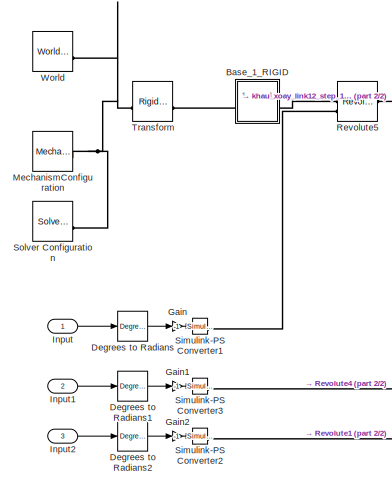
[diagram: root canvas - part 1/2, left side, full height]
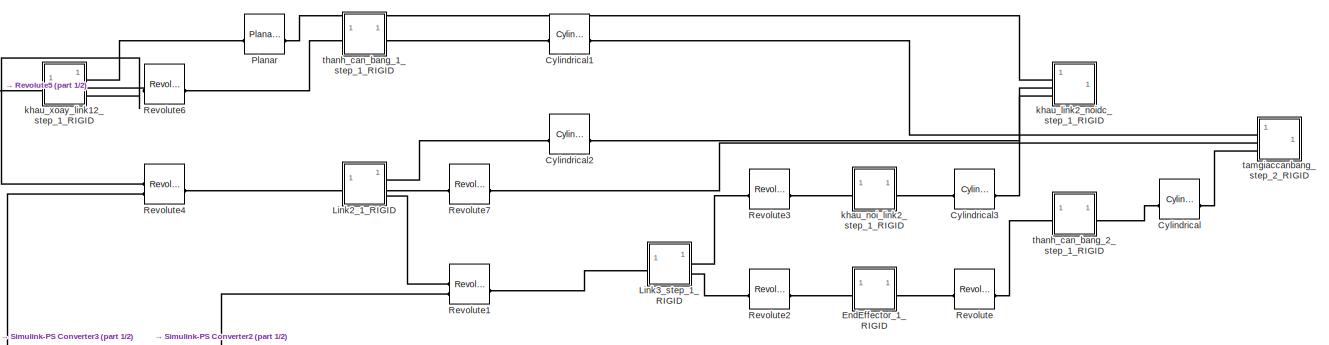
[diagram: root canvas - part 2/2, full width, middle band]
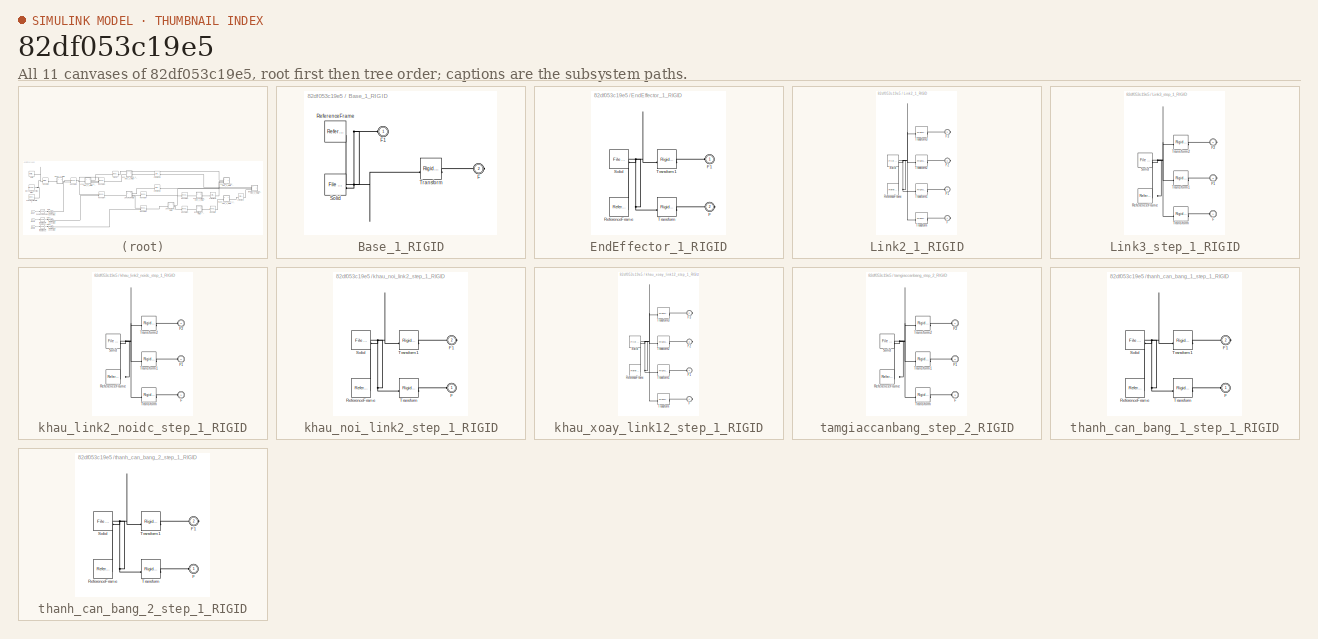
[diagram: thumbnail index - all 11 canvases of the model, root first then tree order]
MODEL slx_82df053c19e5
KIND model
CONFIG AbsTol = auto
CONFIG EnableMultiTasking = off
CONFIG FixedStep = auto
CONFIG MaxStep = auto
CONFIG MinStep = auto
CONFIG RelTol = 1e-3
CONFIG SampleTimeConstraint = Unconstrained
CONFIG SolverName = VariableStepAuto
CONFIG StartTime = 0.0
CONFIG StopTime = 10.0
WORKSPACE source: external: MATLAB File  (data not in archive)
BLOCK [SubSystem] Base_1_RIGID
BLOCK [PMIOPort] Base_1_RIGID/F
  Port = 2
  Side = Right
BLOCK [PMIOPort] Base_1_RIGID/F1
  Side = Left
BLOCK [Reference] Base_1_RIGID/ReferenceFrame  REF=sm_lib/Frames and
Transforms/Reference
Frame
  SourceBlock = sm_lib/Frames and\nTransforms/Reference\nFrame
  SourceType = Reference\nFrame
BLOCK [Reference] Base_1_RIGID/Solid  REF=sm_lib/Body Elements/File Solid
  SourceBlock = sm_lib/Body Elements/File Solid
  SourceType = File Solid
BLOCK [Reference] Base_1_RIGID/Transform  REF=sm_lib/Frames and
Transforms/Rigid
Transform
  SourceBlock = sm_lib/Frames and\nTransforms/Rigid\nTransform
  SourceType = Rigid\nTransform
BLOCK [Reference] Cylindrical  REF=sm_lib/Joints/Cylindrical
Joint
  SourceBlock = sm_lib/Joints/Cylindrical\nJoint
  SourceType = Cylindrical\nJoint
BLOCK [Reference] Cylindrical1  REF=sm_lib/Joints/Cylindrical
Joint
  SourceBlock = sm_lib/Joints/Cylindrical\nJoint
  SourceType = Cylindrical\nJoint
BLOCK [Reference] Cylindrical2  REF=sm_lib/Joints/Cylindrical
Joint
  SourceBlock = sm_lib/Joints/Cylindrical\nJoint
  SourceType = Cylindrical\nJoint
BLOCK [Reference] Cylindrical3  REF=sm_lib/Joints/Cylindrical
Joint
  SourceBlock = sm_lib/Joints/Cylindrical\nJoint
  SourceType = Cylindrical\nJoint
BLOCK [Reference] Degrees to Radians  REF=simulink_extras/Transformations/Degrees to
Radians
  SourceBlock = simulink_extras/Transformations/Degrees to\nRadians
  SourceType = DegreesToRadians
BLOCK [Reference] Degrees to Radians1  REF=simulink_extras/Transformations/Degrees to
Radians
  SourceBlock = simulink_extras/Transformations/Degrees to\nRadians
  SourceType = DegreesToRadians
BLOCK [Reference] Degrees to Radians2  REF=simulink_extras/Transformations/Degrees to
Radians
  SourceBlock = simulink_extras/Transformations/Degrees to\nRadians
  SourceType = DegreesToRadians
BLOCK [SubSystem] EndEffector_1_RIGID
BLOCK [PMIOPort] EndEffector_1_RIGID/F
  Port = 2
  Side = Right
BLOCK [PMIOPort] EndEffector_1_RIGID/F1
  Side = Left
BLOCK [Reference] EndEffector_1_RIGID/ReferenceFrame  REF=sm_lib/Frames and
Transforms/Reference
Frame
  SourceBlock = sm_lib/Frames and\nTransforms/Reference\nFrame
  SourceType = Reference\nFrame
BLOCK [Reference] EndEffector_1_RIGID/Solid  REF=sm_lib/Body Elements/File Solid
  SourceBlock = sm_lib/Body Elements/File Solid
  SourceType = File Solid
BLOCK [Reference] EndEffector_1_RIGID/Transform  REF=sm_lib/Frames and
Transforms/Rigid
Transform
  SourceBlock = sm_lib/Frames and\nTransforms/Rigid\nTransform
  SourceType = Rigid\nTransform
BLOCK [Reference] EndEffector_1_RIGID/Transform1  REF=sm_lib/Frames and
Transforms/Rigid
Transform
  SourceBlock = sm_lib/Frames and\nTransforms/Rigid\nTransform
  SourceType = Rigid\nTransform
BLOCK [Gain] Gain
  Gain = -1
BLOCK [Gain] Gain1
  Gain = -1
BLOCK [Gain] Gain2
  Gain = -1
BLOCK [Inport] Input
BLOCK [Inport] Input1
  Port = 2
BLOCK [Inport] Input2
  Port = 3
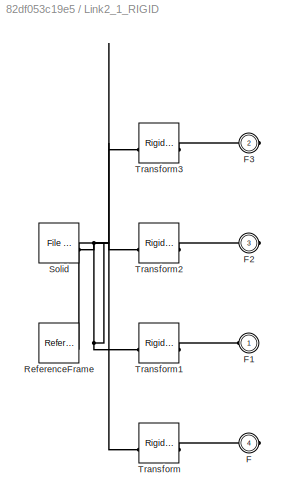
BLOCK [SubSystem] Link2_1_RIGID
BLOCK [PMIOPort] Link2_1_RIGID/F
  Port = 4
  Side = Right
BLOCK [PMIOPort] Link2_1_RIGID/F1
  Side = Left
BLOCK [PMIOPort] Link2_1_RIGID/F2
  Port = 3
  Side = Right
BLOCK [PMIOPort] Link2_1_RIGID/F3
  Port = 2
  Side = Right
BLOCK [Reference] Link2_1_RIGID/ReferenceFrame  REF=sm_lib/Frames and
Transforms/Reference
Frame
  SourceBlock = sm_lib/Frames and\nTransforms/Reference\nFrame
  SourceType = Reference\nFrame
BLOCK [Reference] Link2_1_RIGID/Solid  REF=sm_lib/Body Elements/File Solid
  SourceBlock = sm_lib/Body Elements/File Solid
  SourceType = File Solid
BLOCK [Reference] Link2_1_RIGID/Transform  REF=sm_lib/Frames and
Transforms/Rigid
Transform
  SourceBlock = sm_lib/Frames and\nTransforms/Rigid\nTransform
  SourceType = Rigid\nTransform
BLOCK [Reference] Link2_1_RIGID/Transform1  REF=sm_lib/Frames and
Transforms/Rigid
Transform
  SourceBlock = sm_lib/Frames and\nTransforms/Rigid\nTransform
  SourceType = Rigid\nTransform
BLOCK [Reference] Link2_1_RIGID/Transform2  REF=sm_lib/Frames and
Transforms/Rigid
Transform
  SourceBlock = sm_lib/Frames and\nTransforms/Rigid\nTransform
  SourceType = Rigid\nTransform
BLOCK [Reference] Link2_1_RIGID/Transform3  REF=sm_lib/Frames and
Transforms/Rigid
Transform
  SourceBlock = sm_lib/Frames and\nTransforms/Rigid\nTransform
  SourceType = Rigid\nTransform
BLOCK [SubSystem] Link3_step_1_RIGID
BLOCK [PMIOPort] Link3_step_1_RIGID/F
  Side = Left
BLOCK [PMIOPort] Link3_step_1_RIGID/F1
  Port = 3
  Side = Right
BLOCK [PMIOPort] Link3_step_1_RIGID/F2
  Port = 2
  Side = Right
BLOCK [Reference] Link3_step_1_RIGID/ReferenceFrame  REF=sm_lib/Frames and
Transforms/Reference
Frame
  SourceBlock = sm_lib/Frames and\nTransforms/Reference\nFrame
  SourceType = Reference\nFrame
BLOCK [Reference] Link3_step_1_RIGID/Solid  REF=sm_lib/Body Elements/File Solid
  SourceBlock = sm_lib/Body Elements/File Solid
  SourceType = File Solid
BLOCK [Reference] Link3_step_1_RIGID/Transform  REF=sm_lib/Frames and
Transforms/Rigid
Transform
  SourceBlock = sm_lib/Frames and\nTransforms/Rigid\nTransform
  SourceType = Rigid\nTransform
BLOCK [Reference] Link3_step_1_RIGID/Transform1  REF=sm_lib/Frames and
Transforms/Rigid
Transform
  SourceBlock = sm_lib/Frames and\nTransforms/Rigid\nTransform
  SourceType = Rigid\nTransform
BLOCK [Reference] Link3_step_1_RIGID/Transform2  REF=sm_lib/Frames and
Transforms/Rigid
Transform
  SourceBlock = sm_lib/Frames and\nTransforms/Rigid\nTransform
  SourceType = Rigid\nTransform
BLOCK [Reference] MechanismConfiguration  REF=sm_lib/Utilities/Mechanism
Configuration
  SourceBlock = sm_lib/Utilities/Mechanism\nConfiguration
  SourceType = Mechanism\nConfiguration
BLOCK [Reference] Planar  REF=sm_lib/Joints/Planar Joint
  SourceBlock = sm_lib/Joints/Planar Joint
  SourceType = Planar Joint
BLOCK [Reference] Revolute  REF=sm_lib/Joints/Revolute Joint
  SourceBlock = sm_lib/Joints/Revolute Joint
  SourceType = Revolute Joint
BLOCK [Reference] Revolute1  REF=sm_lib/Joints/Revolute Joint
  SourceBlock = sm_lib/Joints/Revolute Joint
  SourceType = Revolute Joint
BLOCK [Reference] Revolute2  REF=sm_lib/Joints/Revolute Joint
  SourceBlock = sm_lib/Joints/Revolute Joint
  SourceType = Revolute Joint
BLOCK [Reference] Revolute3  REF=sm_lib/Joints/Revolute Joint
  SourceBlock = sm_lib/Joints/Revolute Joint
  SourceType = Revolute Joint
BLOCK [Reference] Revolute4  REF=sm_lib/Joints/Revolute Joint
  SourceBlock = sm_lib/Joints/Revolute Joint
  SourceType = Revolute Joint
BLOCK [Reference] Revolute5  REF=sm_lib/Joints/Revolute Joint
  SourceBlock = sm_lib/Joints/Revolute Joint
  SourceType = Revolute Joint
BLOCK [Reference] Revolute6  REF=sm_lib/Joints/Revolute Joint
  SourceBlock = sm_lib/Joints/Revolute Joint
  SourceType = Revolute Joint
BLOCK [Reference] Revolute7  REF=sm_lib/Joints/Revolute Joint
  SourceBlock = sm_lib/Joints/Revolute Joint
  SourceType = Revolute Joint
BLOCK [Reference] Simulink-PS Converter1  REF=nesl_utility/Simulink-PS
Converter
  SourceBlock = nesl_utility/Simulink-PS\nConverter
  SourceType = Simulink-PS\nConverter
BLOCK [Reference] Simulink-PS Converter2  REF=nesl_utility/Simulink-PS
Converter
  SourceBlock = nesl_utility/Simulink-PS\nConverter
  SourceType = Simulink-PS\nConverter
BLOCK [Reference] Simulink-PS Converter3  REF=nesl_utility/Simulink-PS
Converter
  SourceBlock = nesl_utility/Simulink-PS\nConverter
  SourceType = Simulink-PS\nConverter
BLOCK [Reference] Solver Configuration  REF=nesl_utility/Solver
Configuration
  SourceBlock = nesl_utility/Solver\nConfiguration
  SourceType = Solver\nConfiguration
BLOCK [Reference] Transform  REF=sm_lib/Frames and
Transforms/Rigid
Transform
  SourceBlock = sm_lib/Frames and\nTransforms/Rigid\nTransform
  SourceType = Rigid\nTransform
BLOCK [Reference] World  REF=sm_lib/Frames and
Transforms/World Frame
  SourceBlock = sm_lib/Frames and\nTransforms/World Frame
  SourceType = World Frame
BLOCK [SubSystem] khau_link2_noidc_step_1_RIGID
BLOCK [PMIOPort] khau_link2_noidc_step_1_RIGID/F
  Side = Left
BLOCK [PMIOPort] khau_link2_noidc_step_1_RIGID/F1
  Port = 2
  Side = Left
BLOCK [PMIOPort] khau_link2_noidc_step_1_RIGID/F2
  Port = 3
  Side = Left
BLOCK [Reference] khau_link2_noidc_step_1_RIGID/ReferenceFrame  REF=sm_lib/Frames and
Transforms/Reference
Frame
  SourceBlock = sm_lib/Frames and\nTransforms/Reference\nFrame
  SourceType = Reference\nFrame
BLOCK [Reference] khau_link2_noidc_step_1_RIGID/Solid  REF=sm_lib/Body Elements/File Solid
  SourceBlock = sm_lib/Body Elements/File Solid
  SourceType = File Solid
BLOCK [Reference] khau_link2_noidc_step_1_RIGID/Transform  REF=sm_lib/Frames and
Transforms/Rigid
Transform
  SourceBlock = sm_lib/Frames and\nTransforms/Rigid\nTransform
  SourceType = Rigid\nTransform
BLOCK [Reference] khau_link2_noidc_step_1_RIGID/Transform1  REF=sm_lib/Frames and
Transforms/Rigid
Transform
  SourceBlock = sm_lib/Frames and\nTransforms/Rigid\nTransform
  SourceType = Rigid\nTransform
BLOCK [Reference] khau_link2_noidc_step_1_RIGID/Transform2  REF=sm_lib/Frames and
Transforms/Rigid
Transform
  SourceBlock = sm_lib/Frames and\nTransforms/Rigid\nTransform
  SourceType = Rigid\nTransform
BLOCK [SubSystem] khau_noi_link2_step_1_RIGID
BLOCK [PMIOPort] khau_noi_link2_step_1_RIGID/F
  Side = Left
BLOCK [PMIOPort] khau_noi_link2_step_1_RIGID/F1
  Port = 2
  Side = Right
BLOCK [Reference] khau_noi_link2_step_1_RIGID/ReferenceFrame  REF=sm_lib/Frames and
Transforms/Reference
Frame
  SourceBlock = sm_lib/Frames and\nTransforms/Reference\nFrame
  SourceType = Reference\nFrame
BLOCK [Reference] khau_noi_link2_step_1_RIGID/Solid  REF=sm_lib/Body Elements/File Solid
  SourceBlock = sm_lib/Body Elements/File Solid
  SourceType = File Solid
BLOCK [Reference] khau_noi_link2_step_1_RIGID/Transform  REF=sm_lib/Frames and
Transforms/Rigid
Transform
  SourceBlock = sm_lib/Frames and\nTransforms/Rigid\nTransform
  SourceType = Rigid\nTransform
BLOCK [Reference] khau_noi_link2_step_1_RIGID/Transform1  REF=sm_lib/Frames and
Transforms/Rigid
Transform
  SourceBlock = sm_lib/Frames and\nTransforms/Rigid\nTransform
  SourceType = Rigid\nTransform
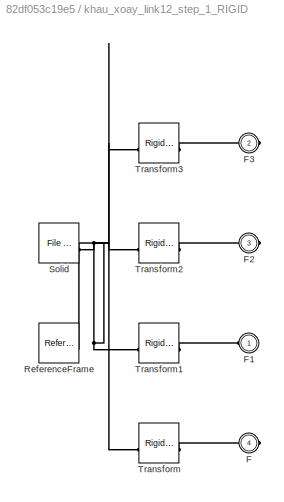
BLOCK [SubSystem] khau_xoay_link12_step_1_RIGID
BLOCK [PMIOPort] khau_xoay_link12_step_1_RIGID/F
  Port = 4
  Side = Right
BLOCK [PMIOPort] khau_xoay_link12_step_1_RIGID/F1
  Side = Left
BLOCK [PMIOPort] khau_xoay_link12_step_1_RIGID/F2
  Port = 3
  Side = Right
BLOCK [PMIOPort] khau_xoay_link12_step_1_RIGID/F3
  Port = 2
  Side = Right
BLOCK [Reference] khau_xoay_link12_step_1_RIGID/ReferenceFrame  REF=sm_lib/Frames and
Transforms/Reference
Frame
  SourceBlock = sm_lib/Frames and\nTransforms/Reference\nFrame
  SourceType = Reference\nFrame
BLOCK [Reference] khau_xoay_link12_step_1_RIGID/Solid  REF=sm_lib/Body Elements/File Solid
  SourceBlock = sm_lib/Body Elements/File Solid
  SourceType = File Solid
BLOCK [Reference] khau_xoay_link12_step_1_RIGID/Transform  REF=sm_lib/Frames and
Transforms/Rigid
Transform
  SourceBlock = sm_lib/Frames and\nTransforms/Rigid\nTransform
  SourceType = Rigid\nTransform
BLOCK [Reference] khau_xoay_link12_step_1_RIGID/Transform1  REF=sm_lib/Frames and
Transforms/Rigid
Transform
  SourceBlock = sm_lib/Frames and\nTransforms/Rigid\nTransform
  SourceType = Rigid\nTransform
BLOCK [Reference] khau_xoay_link12_step_1_RIGID/Transform2  REF=sm_lib/Frames and
Transforms/Rigid
Transform
  SourceBlock = sm_lib/Frames and\nTransforms/Rigid\nTransform
  SourceType = Rigid\nTransform
BLOCK [Reference] khau_xoay_link12_step_1_RIGID/Transform3  REF=sm_lib/Frames and
Transforms/Rigid
Transform
  SourceBlock = sm_lib/Frames and\nTransforms/Rigid\nTransform
  SourceType = Rigid\nTransform
BLOCK [SubSystem] tamgiaccanbang_step_2_RIGID
BLOCK [PMIOPort] tamgiaccanbang_step_2_RIGID/F
  Port = 3
  Side = Left
BLOCK [PMIOPort] tamgiaccanbang_step_2_RIGID/F1
  Port = 2
  Side = Left
BLOCK [PMIOPort] tamgiaccanbang_step_2_RIGID/F2
  Side = Left
BLOCK [Reference] tamgiaccanbang_step_2_RIGID/ReferenceFrame  REF=sm_lib/Frames and
Transforms/Reference
Frame
  SourceBlock = sm_lib/Frames and\nTransforms/Reference\nFrame
  SourceType = Reference\nFrame
BLOCK [Reference] tamgiaccanbang_step_2_RIGID/Solid  REF=sm_lib/Body Elements/File Solid
  SourceBlock = sm_lib/Body Elements/File Solid
  SourceType = File Solid
BLOCK [Reference] tamgiaccanbang_step_2_RIGID/Transform  REF=sm_lib/Frames and
Transforms/Rigid
Transform
  SourceBlock = sm_lib/Frames and\nTransforms/Rigid\nTransform
  SourceType = Rigid\nTransform
BLOCK [Reference] tamgiaccanbang_step_2_RIGID/Transform1  REF=sm_lib/Frames and
Transforms/Rigid
Transform
  SourceBlock = sm_lib/Frames and\nTransforms/Rigid\nTransform
  SourceType = Rigid\nTransform
BLOCK [Reference] tamgiaccanbang_step_2_RIGID/Transform2  REF=sm_lib/Frames and
Transforms/Rigid
Transform
  SourceBlock = sm_lib/Frames and\nTransforms/Rigid\nTransform
  SourceType = Rigid\nTransform
BLOCK [SubSystem] thanh_can_bang_1_step_1_RIGID
BLOCK [PMIOPort] thanh_can_bang_1_step_1_RIGID/F
  Side = Left
BLOCK [PMIOPort] thanh_can_bang_1_step_1_RIGID/F1
  Port = 2
  Side = Right
BLOCK [Reference] thanh_can_bang_1_step_1_RIGID/ReferenceFrame  REF=sm_lib/Frames and
Transforms/Reference
Frame
  SourceBlock = sm_lib/Frames and\nTransforms/Reference\nFrame
  SourceType = Reference\nFrame
BLOCK [Reference] thanh_can_bang_1_step_1_RIGID/Solid  REF=sm_lib/Body Elements/File Solid
  SourceBlock = sm_lib/Body Elements/File Solid
  SourceType = File Solid
BLOCK [Reference] thanh_can_bang_1_step_1_RIGID/Transform  REF=sm_lib/Frames and
Transforms/Rigid
Transform
  SourceBlock = sm_lib/Frames and\nTransforms/Rigid\nTransform
  SourceType = Rigid\nTransform
BLOCK [Reference] thanh_can_bang_1_step_1_RIGID/Transform1  REF=sm_lib/Frames and
Transforms/Rigid
Transform
  SourceBlock = sm_lib/Frames and\nTransforms/Rigid\nTransform
  SourceType = Rigid\nTransform
BLOCK [SubSystem] thanh_can_bang_2_step_1_RIGID
BLOCK [PMIOPort] thanh_can_bang_2_step_1_RIGID/F
  Side = Left
BLOCK [PMIOPort] thanh_can_bang_2_step_1_RIGID/F1
  Port = 2
  Side = Right
BLOCK [Reference] thanh_can_bang_2_step_1_RIGID/ReferenceFrame  REF=sm_lib/Frames and
Transforms/Reference
Frame
  SourceBlock = sm_lib/Frames and\nTransforms/Reference\nFrame
  SourceType = Reference\nFrame
BLOCK [Reference] thanh_can_bang_2_step_1_RIGID/Solid  REF=sm_lib/Body Elements/File Solid
  SourceBlock = sm_lib/Body Elements/File Solid
  SourceType = File Solid
BLOCK [Reference] thanh_can_bang_2_step_1_RIGID/Transform  REF=sm_lib/Frames and
Transforms/Rigid
Transform
  SourceBlock = sm_lib/Frames and\nTransforms/Rigid\nTransform
  SourceType = Rigid\nTransform
BLOCK [Reference] thanh_can_bang_2_step_1_RIGID/Transform1  REF=sm_lib/Frames and
Transforms/Rigid
Transform
  SourceBlock = sm_lib/Frames and\nTransforms/Rigid\nTransform
  SourceType = Rigid\nTransform
LINE Degrees to Radians1:1 -> Gain1:1
LINE Degrees to Radians2:1 -> Gain2:1
LINE Degrees to Radians:1 -> Gain:1
LINE Gain1:1 -> Simulink-PS Converter3:1
LINE Gain2:1 -> Simulink-PS Converter2:1
LINE Gain:1 -> Simulink-PS Converter1:1
LINE Input1:1 -> Degrees to Radians1:1
LINE Input2:1 -> Degrees to Radians2:1
LINE Input:1 -> Degrees to Radians:1
PNET net1: Base_1_RIGID/F1:RConn1 -- Base_1_RIGID/ReferenceFrame:RConn1 -- Base_1_RIGID/Solid:RConn1 -- Base_1_RIGID/Transform:LConn1
PLINE Base_1_RIGID/F:RConn1 -- Base_1_RIGID/Transform:RConn1
PLINE Base_1_RIGID:LConn1 -- Transform:RConn1
PLINE Base_1_RIGID:RConn1 -- Revolute5:LConn1
PLINE Cylindrical1:LConn1 -- thanh_can_bang_1_step_1_RIGID:RConn1
PLINE Cylindrical1:RConn1 -- tamgiaccanbang_step_2_RIGID:LConn1
PLINE Cylindrical2:LConn1 -- Link2_1_RIGID:RConn1
PLINE Cylindrical2:RConn1 -- khau_link2_noidc_step_1_RIGID:LConn2
PLINE Cylindrical3:LConn1 -- khau_noi_link2_step_1_RIGID:RConn1
PLINE Cylindrical3:RConn1 -- khau_link2_noidc_step_1_RIGID:LConn3
PLINE Cylindrical:LConn1 -- thanh_can_bang_2_step_1_RIGID:RConn1
PLINE Cylindrical:RConn1 -- tamgiaccanbang_step_2_RIGID:LConn3
PLINE EndEffector_1_RIGID/F1:RConn1 -- EndEffector_1_RIGID/Transform1:RConn1
PLINE EndEffector_1_RIGID/F:RConn1 -- EndEffector_1_RIGID/Transform:RConn1
PNET net2: EndEffector_1_RIGID/ReferenceFrame:RConn1 -- EndEffector_1_RIGID/Solid:RConn1 -- EndEffector_1_RIGID/Transform1:LConn1 -- EndEffector_1_RIGID/Transform:LConn1
PLINE EndEffector_1_RIGID:LConn1 -- Revolute2:RConn1
PLINE EndEffector_1_RIGID:RConn1 -- Revolute:LConn1
PLINE Link2_1_RIGID/F1:RConn1 -- Link2_1_RIGID/Transform1:RConn1
PLINE Link2_1_RIGID/F2:RConn1 -- Link2_1_RIGID/Transform2:RConn1
PLINE Link2_1_RIGID/F3:RConn1 -- Link2_1_RIGID/Transform3:RConn1
PLINE Link2_1_RIGID/F:RConn1 -- Link2_1_RIGID/Transform:RConn1
PNET net3: Link2_1_RIGID/ReferenceFrame:RConn1 -- Link2_1_RIGID/Solid:RConn1 -- Link2_1_RIGID/Transform1:LConn1 -- Link2_1_RIGID/Transform2:LConn1 -- Link2_1_RIGID/Transform3:LConn1 -- Link2_1_RIGID/Transform:LConn1
PLINE Link2_1_RIGID:LConn1 -- Revolute4:RConn1
PLINE Link2_1_RIGID:RConn2 -- Revolute7:LConn1
PLINE Link2_1_RIGID:RConn3 -- Revolute1:LConn1
PLINE Link3_step_1_RIGID/F1:RConn1 -- Link3_step_1_RIGID/Transform1:RConn1
PLINE Link3_step_1_RIGID/F2:RConn1 -- Link3_step_1_RIGID/Transform2:RConn1
PLINE Link3_step_1_RIGID/F:RConn1 -- Link3_step_1_RIGID/Transform:RConn1
PNET net4: Link3_step_1_RIGID/ReferenceFrame:RConn1 -- Link3_step_1_RIGID/Solid:RConn1 -- Link3_step_1_RIGID/Transform1:LConn1 -- Link3_step_1_RIGID/Transform2:LConn1 -- Link3_step_1_RIGID/Transform:LConn1
PLINE Link3_step_1_RIGID:LConn1 -- Revolute1:RConn1
PLINE Link3_step_1_RIGID:RConn1 -- Revolute3:LConn1
PLINE Link3_step_1_RIGID:RConn2 -- Revolute2:LConn1
PNET net5: MechanismConfiguration:RConn1 -- Solver Configuration:RConn1 -- Transform:LConn1 -- World:RConn1
PLINE Planar:LConn1 -- khau_xoay_link12_step_1_RIGID:RConn1
PLINE Planar:RConn1 -- khau_link2_noidc_step_1_RIGID:LConn1
PLINE Revolute1:LConn2 -- Simulink-PS Converter2:RConn1
PLINE Revolute3:RConn1 -- khau_noi_link2_step_1_RIGID:LConn1
PLINE Revolute4:LConn1 -- khau_xoay_link12_step_1_RIGID:RConn3
PLINE Revolute4:LConn2 -- Simulink-PS Converter3:RConn1
PLINE Revolute5:LConn2 -- Simulink-PS Converter1:RConn1
PLINE Revolute5:RConn1 -- khau_xoay_link12_step_1_RIGID:LConn1
PLINE Revolute6:LConn1 -- khau_xoay_link12_step_1_RIGID:RConn2
PLINE Revolute6:RConn1 -- thanh_can_bang_1_step_1_RIGID:LConn1
PLINE Revolute7:RConn1 -- tamgiaccanbang_step_2_RIGID:LConn2
PLINE Revolute:RConn1 -- thanh_can_bang_2_step_1_RIGID:LConn1
PLINE khau_link2_noidc_step_1_RIGID/F1:RConn1 -- khau_link2_noidc_step_1_RIGID/Transform1:RConn1
PLINE khau_link2_noidc_step_1_RIGID/F2:RConn1 -- khau_link2_noidc_step_1_RIGID/Transform2:RConn1
PLINE khau_link2_noidc_step_1_RIGID/F:RConn1 -- khau_link2_noidc_step_1_RIGID/Transform:RConn1
PNET net6: khau_link2_noidc_step_1_RIGID/ReferenceFrame:RConn1 -- khau_link2_noidc_step_1_RIGID/Solid:RConn1 -- khau_link2_noidc_step_1_RIGID/Transform1:LConn1 -- khau_link2_noidc_step_1_RIGID/Transform2:LConn1 -- khau_link2_noidc_step_1_RIGID/Transform:LConn1
PLINE khau_noi_link2_step_1_RIGID/F1:RConn1 -- khau_noi_link2_step_1_RIGID/Transform1:RConn1
PLINE khau_noi_link2_step_1_RIGID/F:RConn1 -- khau_noi_link2_step_1_RIGID/Transform:RConn1
PNET net7: khau_noi_link2_step_1_RIGID/ReferenceFrame:RConn1 -- khau_noi_link2_step_1_RIGID/Solid:RConn1 -- khau_noi_link2_step_1_RIGID/Transform1:LConn1 -- khau_noi_link2_step_1_RIGID/Transform:LConn1
PLINE khau_xoay_link12_step_1_RIGID/F1:RConn1 -- khau_xoay_link12_step_1_RIGID/Transform1:RConn1
PLINE khau_xoay_link12_step_1_RIGID/F2:RConn1 -- khau_xoay_link12_step_1_RIGID/Transform2:RConn1
PLINE khau_xoay_link12_step_1_RIGID/F3:RConn1 -- khau_xoay_link12_step_1_RIGID/Transform3:RConn1
PLINE khau_xoay_link12_step_1_RIGID/F:RConn1 -- khau_xoay_link12_step_1_RIGID/Transform:RConn1
PNET net8: khau_xoay_link12_step_1_RIGID/ReferenceFrame:RConn1 -- khau_xoay_link12_step_1_RIGID/Solid:RConn1 -- khau_xoay_link12_step_1_RIGID/Transform1:LConn1 -- khau_xoay_link12_step_1_RIGID/Transform2:LConn1 -- khau_xoay_link12_step_1_RIGID/Transform3:LConn1 -- khau_xoay_link12_step_1_RIGID/Transform:LConn1
PLINE tamgiaccanbang_step_2_RIGID/F1:RConn1 -- tamgiaccanbang_step_2_RIGID/Transform1:RConn1
PLINE tamgiaccanbang_step_2_RIGID/F2:RConn1 -- tamgiaccanbang_step_2_RIGID/Transform2:RConn1
PLINE tamgiaccanbang_step_2_RIGID/F:RConn1 -- tamgiaccanbang_step_2_RIGID/Transform:RConn1
PNET net9: tamgiaccanbang_step_2_RIGID/ReferenceFrame:RConn1 -- tamgiaccanbang_step_2_RIGID/Solid:RConn1 -- tamgiaccanbang_step_2_RIGID/Transform1:LConn1 -- tamgiaccanbang_step_2_RIGID/Transform2:LConn1 -- tamgiaccanbang_step_2_RIGID/Transform:LConn1
PLINE thanh_can_bang_1_step_1_RIGID/F1:RConn1 -- thanh_can_bang_1_step_1_RIGID/Transform1:RConn1
PLINE thanh_can_bang_1_step_1_RIGID/F:RConn1 -- thanh_can_bang_1_step_1_RIGID/Transform:RConn1
PNET net10: thanh_can_bang_1_step_1_RIGID/ReferenceFrame:RConn1 -- thanh_can_bang_1_step_1_RIGID/Solid:RConn1 -- thanh_can_bang_1_step_1_RIGID/Transform1:LConn1 -- thanh_can_bang_1_step_1_RIGID/Transform:LConn1
PLINE thanh_can_bang_2_step_1_RIGID/F1:RConn1 -- thanh_can_bang_2_step_1_RIGID/Transform1:RConn1
PLINE thanh_can_bang_2_step_1_RIGID/F:RConn1 -- thanh_can_bang_2_step_1_RIGID/Transform:RConn1
PNET net11: thanh_can_bang_2_step_1_RIGID/ReferenceFrame:RConn1 -- thanh_can_bang_2_step_1_RIGID/Solid:RConn1 -- thanh_can_bang_2_step_1_RIGID/Transform1:LConn1 -- thanh_can_bang_2_step_1_RIGID/Transform:LConn1
note: PNET lines group multi-terminal physical nets as a canonical sorted terminal list (undirected conserving connections); 2-terminal nets keep the pairwise PLINE form
